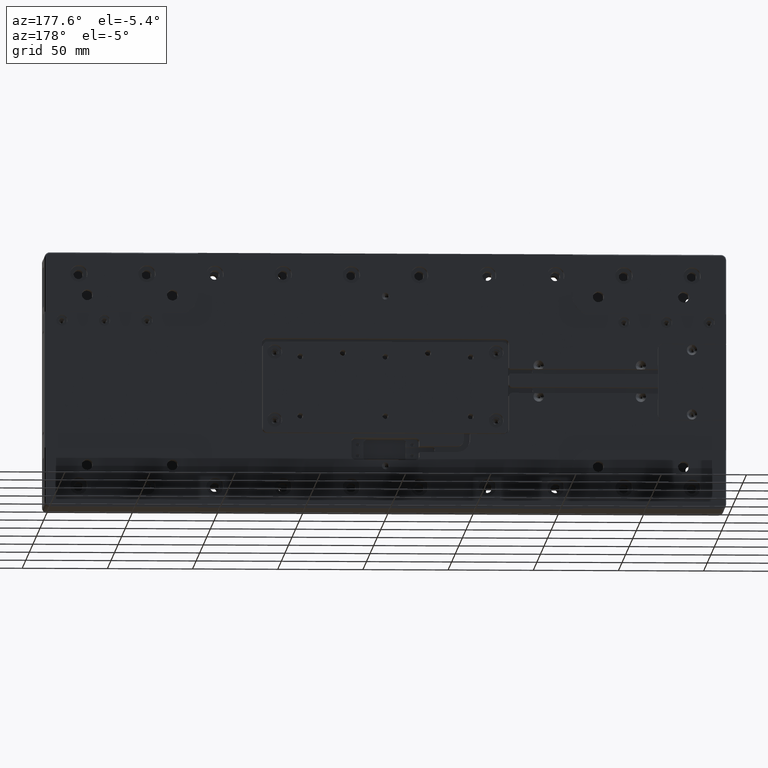
[diagram: clean part render]
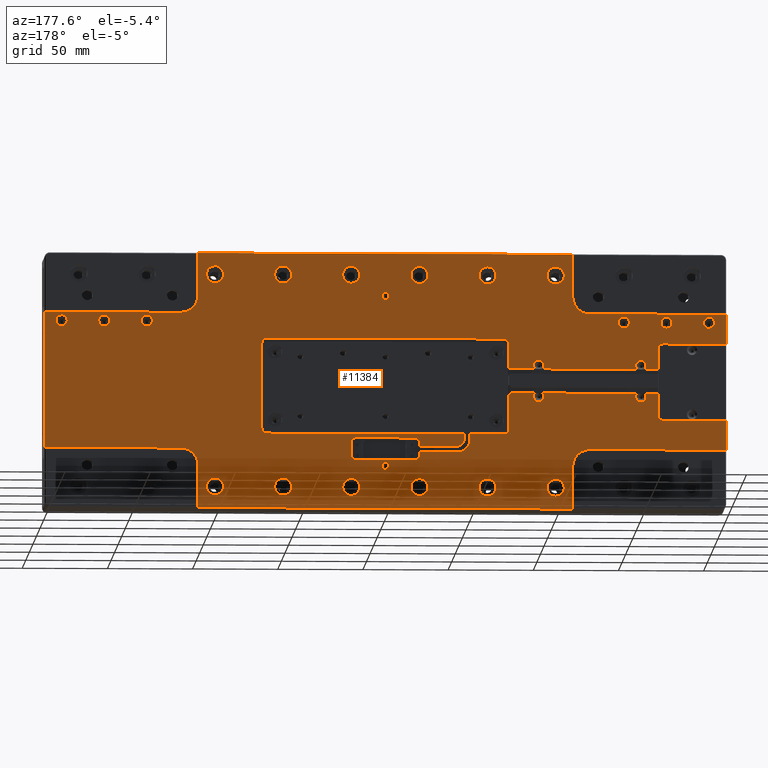
[diagram: same view with one face highlighted and labeled with its STEP entity id]
A machine part, auxiliary view. The second image highlights one B-rep face of the part: STEP entity #11384.
In plain terms, the highlighted planar face has unit normal (0, 1, 0).
Its self-contained STEP definition (entity closure, byte-faithful):
#63 = DIRECTION ( 'NONE',  ( -0.000000000000000000, -1.000000000000000000, -0.000000000000000000 ) ) ;
#78 = DIRECTION ( 'NONE',  ( 0.000000000000000000, 0.000000000000000000, 1.000000000000000000 ) ) ;
#101 = CIRCLE ( 'NONE', #16103, 1.000000000000000000 ) ;
#118 = EDGE_CURVE ( 'NONE', #11110, #12264, #101, .T. ) ;
#138 = EDGE_CURVE ( 'NONE', #18177, #18177, #31562, .T. ) ;
#153 = VERTEX_POINT ( 'NONE', #11376 ) ;
#220 = CARTESIAN_POINT ( 'NONE',  ( 110.0000000000000000, 14.50000000000000000, 0.000000000000000000 ) ) ;
#311 = LINE ( 'NONE', #516, #26731 ) ;
#405 = DIRECTION ( 'NONE',  ( 0.000000000000000000, 0.000000000000000000, 1.000000000000000000 ) ) ;
#449 = EDGE_CURVE ( 'NONE', #4313, #13432, #16037, .T. ) ;
#459 = CARTESIAN_POINT ( 'NONE',  ( -72.50000000000000000, 14.49999999999999822, 8.500000000000001776 ) ) ;
#484 = EDGE_CURVE ( 'NONE', #36821, #16899, #2051, .T. ) ;
#516 = CARTESIAN_POINT ( 'NONE',  ( -72.50000000000000000, 14.50000000000000000, 0.000000000000000000 ) ) ;
#744 = ORIENTED_EDGE ( 'NONE', *, *, #35721, .T. ) ;
#748 = EDGE_CURVE ( 'NONE', #15128, #15128, #7977, .T. ) ;
#800 = EDGE_LOOP ( 'NONE', ( #33799 ) ) ;
#964 = FACE_BOUND ( 'NONE', #23937, .T. ) ;
#965 = CARTESIAN_POINT ( 'NONE',  ( 20.00000000000000000, 14.50000000000000000, -36.00000000000000711 ) ) ;
#982 = EDGE_LOOP ( 'NONE', ( #24817 ) ) ;
#1067 = CIRCLE ( 'NONE', #17833, 3.100000000000000533 ) ;
#1135 = CARTESIAN_POINT ( 'NONE',  ( -100.0000000000000000, 14.50000000000000178, 62.50000000000000000 ) ) ;
#1147 = ORIENTED_EDGE ( 'NONE', *, *, #10512, .T. ) ;
#1190 = VERTEX_POINT ( 'NONE', #18488 ) ;
#1241 = DIRECTION ( 'NONE',  ( 0.000000000000000000, -0.000000000000000000, 1.000000000000000000 ) ) ;
#1246 = DIRECTION ( 'NONE',  ( 0.000000000000000000, 0.000000000000000000, 1.000000000000000000 ) ) ;
#1396 = VERTEX_POINT ( 'NONE', #18421 ) ;
#1447 = ORIENTED_EDGE ( 'NONE', *, *, #32521, .T. ) ;
#1561 = FACE_BOUND ( 'NONE', #11392, .T. ) ;
#1769 = ORIENTED_EDGE ( 'NONE', *, *, #36572, .T. ) ;
#1798 = CARTESIAN_POINT ( 'NONE',  ( -20.00000000000000000, 14.50000000000000000, 0.000000000000000000 ) ) ;
#1842 = DIRECTION ( 'NONE',  ( 0.000000000000000000, 0.000000000000000000, 1.000000000000000000 ) ) ;
#1900 = VECTOR ( 'NONE', #9362, 1000.000000000000000 ) ;
#1936 = CARTESIAN_POINT ( 'NONE',  ( -160.0000000000000000, 14.50000000000000000, -19.50000000000000000 ) ) ;
#2051 = CIRCLE ( 'NONE', #36872, 2.999999999999999112 ) ;
#2239 = DIRECTION ( 'NONE',  ( -0.000000000000000000, -1.000000000000000000, -0.000000000000000000 ) ) ;
#2254 = EDGE_CURVE ( 'NONE', #12324, #25168, #39716, .T. ) ;
#2301 = VECTOR ( 'NONE', #18542, 1000.000000000000000 ) ;
#2305 = LINE ( 'NONE', #18456, #10984 ) ;
#2364 = VERTEX_POINT ( 'NONE', #23107 ) ;
#2406 = EDGE_LOOP ( 'NONE', ( #5792 ) ) ;
#2426 = CIRCLE ( 'NONE', #21816, 4.999999999999997335 ) ;
#2449 = DIRECTION ( 'NONE',  ( -0.000000000000000000, -1.000000000000000000, -0.000000000000000000 ) ) ;
#2474 = LINE ( 'NONE', #8920, #20757 ) ;
#2502 = AXIS2_PLACEMENT_3D ( 'NONE', #21765, #34076, #31222 ) ;
#2559 = CARTESIAN_POINT ( 'NONE',  ( 0.000000000000000000, 14.50000000000000000, 7.500000000000000000 ) ) ;
#2567 = ORIENTED_EDGE ( 'NONE', *, *, #25531, .T. ) ;
#2752 = AXIS2_PLACEMENT_3D ( 'NONE', #34269, #4525, #6183 ) ;
#2772 = ORIENTED_EDGE ( 'NONE', *, *, #12543, .T. ) ;
#2807 = DIRECTION ( 'NONE',  ( -8.953411488912550710E-15, 0.000000000000000000, 1.000000000000000000 ) ) ;
#2835 = DIRECTION ( 'NONE',  ( -0.000000000000000000, -1.000000000000000000, -0.000000000000000000 ) ) ;
#2910 = ORIENTED_EDGE ( 'NONE', *, *, #32394, .T. ) ;
#2984 = CARTESIAN_POINT ( 'NONE',  ( -190.0000000000000000, 14.49999999999999822, 35.00000000000000000 ) ) ;
#3156 = EDGE_CURVE ( 'NONE', #23538, #15225, #38516, .T. ) ;
#3181 = CIRCLE ( 'NONE', #27013, 3.250000000000002665 ) ;
#3301 = CARTESIAN_POINT ( 'NONE',  ( -20.00000000000000000, 14.50000000000000178, 62.50000000000000000 ) ) ;
#3335 = DIRECTION ( 'NONE',  ( -0.000000000000000000, -1.000000000000000000, -0.000000000000000000 ) ) ;
#3427 = VERTEX_POINT ( 'NONE', #34426 ) ;
#3586 = CARTESIAN_POINT ( 'NONE',  ( -160.0000000000000000, 14.50000000000000000, 0.000000000000000000 ) ) ;
#3621 = AXIS2_PLACEMENT_3D ( 'NONE', #5864, #2835, #18189 ) ;
#3638 = VERTEX_POINT ( 'NONE', #27522 ) ;
#3648 = DIRECTION ( 'NONE',  ( 0.000000000000000000, 1.000000000000000000, 0.000000000000000000 ) ) ;
#3699 = CARTESIAN_POINT ( 'NONE',  ( -110.0000000000000000, 14.50000000000000000, 75.00000000000000000 ) ) ;
#3703 = AXIS2_PLACEMENT_3D ( 'NONE', #21301, #15426, #78 ) ;
#3722 = CIRCLE ( 'NONE', #21803, 5.000000000000004441 ) ;
#3733 = CIRCLE ( 'NONE', #25675, 7.750000000000000000 ) ;
#3734 = VERTEX_POINT ( 'NONE', #37223 ) ;
#3948 = EDGE_CURVE ( 'NONE', #7434, #7434, #13484, .T. ) ;
#3986 = DIRECTION ( 'NONE',  ( -0.000000000000000000, -1.000000000000000000, -0.000000000000000000 ) ) ;
#4001 = DIRECTION ( 'NONE',  ( -0.000000000000000000, -1.000000000000000000, -0.000000000000000000 ) ) ;
#4063 = VECTOR ( 'NONE', #33554, 1000.000000000000000 ) ;
#4132 = AXIS2_PLACEMENT_3D ( 'NONE', #33383, #24105, #27745 ) ;
#4205 = DIRECTION ( 'NONE',  ( 0.000000000000000000, 1.000000000000000000, 0.000000000000000000 ) ) ;
#4250 = DIRECTION ( 'NONE',  ( -0.000000000000000000, 0.000000000000000000, -1.000000000000000000 ) ) ;
#4276 = CIRCLE ( 'NONE', #28146, 4.250000000000000000 ) ;
#4313 = VERTEX_POINT ( 'NONE', #24847 ) ;
#4435 = VERTEX_POINT ( 'NONE', #35353 ) ;
#4525 = DIRECTION ( 'NONE',  ( -0.000000000000000000, -1.000000000000000000, -0.000000000000000000 ) ) ;
#4600 = FACE_BOUND ( 'NONE', #36173, .T. ) ;
#4641 = EDGE_CURVE ( 'NONE', #153, #14985, #30905, .T. ) ;
#4683 = CARTESIAN_POINT ( 'NONE',  ( -110.0000000000000000, 14.50000000000000000, 0.000000000000000000 ) ) ;
#4731 = ORIENTED_EDGE ( 'NONE', *, *, #17670, .T. ) ;
#4766 = LINE ( 'NONE', #26383, #21828 ) ;
#4883 = AXIS2_PLACEMENT_3D ( 'NONE', #6706, #63, #16006 ) ;
#4890 = EDGE_CURVE ( 'NONE', #4435, #27779, #7293, .T. ) ;
#4919 = EDGE_CURVE ( 'NONE', #35901, #1396, #29296, .T. ) ;
#5064 = CARTESIAN_POINT ( 'NONE',  ( 0.000000000000000000, 14.50000000000000000, -48.00000000000000000 ) ) ;
#5100 = EDGE_CURVE ( 'NONE', #22157, #12264, #22282, .T. ) ;
#5142 = CARTESIAN_POINT ( 'NONE',  ( 0.000000000000000000, 14.50000000000000000, -31.00000000000000000 ) ) ;
#5187 = DIRECTION ( 'NONE',  ( -0.000000000000000000, -1.000000000000000000, -0.000000000000000000 ) ) ;
#5239 = CARTESIAN_POINT ( 'NONE',  ( 17.50000000000000000, 14.50000000000000000, -33.50000000000000000 ) ) ;
#5294 = CARTESIAN_POINT ( 'NONE',  ( -92.36854385646769572, 14.50000000000000000, -6.750000000000000000 ) ) ;
#5447 = VERTEX_POINT ( 'NONE', #5064 ) ;
#5499 = CIRCLE ( 'NONE', #21009, 3.250000000000002665 ) ;
#5529 = DIRECTION ( 'NONE',  ( 0.000000000000000000, -0.000000000000000000, 1.000000000000000000 ) ) ;
#5533 = EDGE_LOOP ( 'NONE', ( #21398 ) ) ;
#5607 = DIRECTION ( 'NONE',  ( 0.000000000000000000, 0.000000000000000000, 1.000000000000000000 ) ) ;
#5720 = AXIS2_PLACEMENT_3D ( 'NONE', #1135, #3986, #34462 ) ;
#5736 = CARTESIAN_POINT ( 'NONE',  ( -140.0000000000000000, 14.49999999999999822, 35.00000000000000000 ) ) ;
#5792 = ORIENTED_EDGE ( 'NONE', *, *, #21735, .T. ) ;
#5820 = AXIS2_PLACEMENT_3D ( 'NONE', #3301, #27330, #27520 ) ;
#5837 = CARTESIAN_POINT ( 'NONE',  ( -150.0000000000000000, 14.50000000000000000, 9.500000000000000000 ) ) ;
#5864 = CARTESIAN_POINT ( 'NONE',  ( 17.50000000000000000, 14.50000000000000000, -36.00000000000000711 ) ) ;
#5870 = CARTESIAN_POINT ( 'NONE',  ( 100.0000000000000000, 14.50000000000000178, -62.50000000000000000 ) ) ;
#5877 = CARTESIAN_POINT ( 'NONE',  ( 17.50000000000000000, 14.50000000000000000, -44.00000000000000000 ) ) ;
#6144 = EDGE_CURVE ( 'NONE', #13432, #17726, #26349, .T. ) ;
#6175 = LINE ( 'NONE', #18507, #32713 ) ;
#6183 = DIRECTION ( 'NONE',  ( 0.000000000000000000, 0.000000000000000000, 1.000000000000000000 ) ) ;
#6195 = VECTOR ( 'NONE', #20782, 1000.000000000000000 ) ;
#6331 = EDGE_CURVE ( 'NONE', #17530, #17530, #36165, .T. ) ;
#6387 = CARTESIAN_POINT ( 'NONE',  ( 100.0000000000000000, 14.50000000000000178, -57.50000000000000000 ) ) ;
#6409 = VERTEX_POINT ( 'NONE', #38036 ) ;
#6587 = ORIENTED_EDGE ( 'NONE', *, *, #16684, .T. ) ;
#6602 = EDGE_CURVE ( 'NONE', #6409, #2364, #3733, .T. ) ;
#6655 = VECTOR ( 'NONE', #32798, 1000.000000000000000 ) ;
#6658 = EDGE_CURVE ( 'NONE', #9410, #9410, #2426, .T. ) ;
#6706 = CARTESIAN_POINT ( 'NONE',  ( -90.00000000000000000, 14.50000000000000000, -8.750000000000000000 ) ) ;
#6857 = VECTOR ( 'NONE', #17359, 1000.000000000000000 ) ;
#6866 = ORIENTED_EDGE ( 'NONE', *, *, #39362, .T. ) ;
#6926 = CARTESIAN_POINT ( 'NONE',  ( -160.0000000000000000, 14.50000000000000000, -6.750000000000000000 ) ) ;
#6964 = VECTOR ( 'NONE', #11604, 1000.000000000000000 ) ;
#7034 = ORIENTED_EDGE ( 'NONE', *, *, #22224, .T. ) ;
#7064 = VECTOR ( 'NONE', #20586, 1000.000000000000000 ) ;
#7176 = CARTESIAN_POINT ( 'NONE',  ( 0.000000000000000000, 14.50000000000000000, -22.50000000000000000 ) ) ;
#7234 = CIRCLE ( 'NONE', #26587, 2.999999999999999112 ) ;
#7290 = CARTESIAN_POINT ( 'NONE',  ( 0.000000000000000000, 14.50000000000000000, -6.750000000000000000 ) ) ;
#7293 = CIRCLE ( 'NONE', #36390, 2.999999999999999112 ) ;
#7379 = CARTESIAN_POINT ( 'NONE',  ( -152.3685438564826882, 14.50000000000000000, -6.750000000000000000 ) ) ;
#7415 = FACE_BOUND ( 'NONE', #5533, .T. ) ;
#7434 = VERTEX_POINT ( 'NONE', #13701 ) ;
#7669 = CARTESIAN_POINT ( 'NONE',  ( -73.50000000000001421, 14.49999999999999822, 7.500000000000000000 ) ) ;
#7811 = CARTESIAN_POINT ( 'NONE',  ( -200.0000000000000284, 14.50000000000000000, 22.50000000000000355 ) ) ;
#7879 = EDGE_CURVE ( 'NONE', #3734, #9925, #24466, .T. ) ;
#7962 = EDGE_CURVE ( 'NONE', #35322, #11062, #25332, .T. ) ;
#7977 = CIRCLE ( 'NONE', #30520, 5.000000000000004441 ) ;
#8110 = VECTOR ( 'NONE', #18794, 1000.000000000000000 ) ;
#8157 = LINE ( 'NONE', #20491, #6655 ) ;
#8221 = DIRECTION ( 'NONE',  ( -1.000000000000000000, -0.000000000000000000, 0.000000000000000000 ) ) ;
#8231 = VERTEX_POINT ( 'NONE', #17721 ) ;
#8287 = CARTESIAN_POINT ( 'NONE',  ( 0.000000000000000000, 14.50000000000000000, 52.00000000000000711 ) ) ;
#8317 = ORIENTED_EDGE ( 'NONE', *, *, #19644, .T. ) ;
#8448 = VERTEX_POINT ( 'NONE', #16139 ) ;
#8480 = VERTEX_POINT ( 'NONE', #17583 ) ;
#8549 = DIRECTION ( 'NONE',  ( -0.000000000000000000, -1.000000000000000000, -0.000000000000000000 ) ) ;
#8568 = CIRCLE ( 'NONE', #2752, 3.100000000000000533 ) ;
#8706 = DIRECTION ( 'NONE',  ( 0.000000000000000000, 0.000000000000000000, 1.000000000000000000 ) ) ;
#8715 = ORIENTED_EDGE ( 'NONE', *, *, #37662, .T. ) ;
#8770 = CIRCLE ( 'NONE', #26848, 3.250000000000002665 ) ;
#8777 = ORIENTED_EDGE ( 'NONE', *, *, #14829, .T. ) ;
#8810 = VERTEX_POINT ( 'NONE', #12403 ) ;
#8920 = CARTESIAN_POINT ( 'NONE',  ( -200.0000000000000000, 14.50000000000000000, 0.000000000000000000 ) ) ;
#8952 = CARTESIAN_POINT ( 'NONE',  ( 69.50000000000000000, 14.50000000000000000, -28.00000000000000000 ) ) ;
#8983 = AXIS2_PLACEMENT_3D ( 'NONE', #32998, #8549, #14230 ) ;
#8984 = ORIENTED_EDGE ( 'NONE', *, *, #16043, .T. ) ;
#9051 = EDGE_CURVE ( 'NONE', #2364, #18588, #35616, .T. ) ;
#9100 = VECTOR ( 'NONE', #27397, 1000.000000000000000 ) ;
#9111 = DIRECTION ( 'NONE',  ( -0.000000000000000000, -1.000000000000000000, -0.000000000000000000 ) ) ;
#9129 = DIRECTION ( 'NONE',  ( 0.000000000000000000, 0.000000000000000000, 1.000000000000000000 ) ) ;
#9131 = CARTESIAN_POINT ( 'NONE',  ( -72.50000000000001421, 14.50000000000000000, -28.00000000000000000 ) ) ;
#9152 = LINE ( 'NONE', #5142, #9567 ) ;
#9362 = DIRECTION ( 'NONE',  ( 1.000000000000000000, 0.000000000000000000, -0.000000000000000000 ) ) ;
#9382 = CARTESIAN_POINT ( 'NONE',  ( -90.00000000000000000, 14.50000000000000000, 9.500000000000000000 ) ) ;
#9410 = VERTEX_POINT ( 'NONE', #6387 ) ;
#9415 = VECTOR ( 'NONE', #35569, 1000.000000000000000 ) ;
#9553 = VERTEX_POINT ( 'NONE', #27082 ) ;
#9567 = VECTOR ( 'NONE', #21074, 1000.000000000000000 ) ;
#9837 = CARTESIAN_POINT ( 'NONE',  ( 0.000000000000000000, 14.50000000000000000, 75.00000000000000000 ) ) ;
#9846 = LINE ( 'NONE', #30850, #2301 ) ;
#9925 = VERTEX_POINT ( 'NONE', #10083 ) ;
#9944 = CARTESIAN_POINT ( 'NONE',  ( -72.50000000000000000, 14.50000000000000000, 0.000000000000000000 ) ) ;
#10041 = CARTESIAN_POINT ( 'NONE',  ( 0.000000000000000000, 14.50000000000000000, 0.000000000000000000 ) ) ;
#10044 = VERTEX_POINT ( 'NONE', #17151 ) ;
#10077 = EDGE_CURVE ( 'NONE', #1396, #25365, #17554, .T. ) ;
#10083 = CARTESIAN_POINT ( 'NONE',  ( 109.9999999999999858, 14.50000000000000000, -75.00000000000000000 ) ) ;
#10090 = AXIS2_PLACEMENT_3D ( 'NONE', #10041, #22376, #37929 ) ;
#10117 = CARTESIAN_POINT ( 'NONE',  ( 60.00000000000000000, 14.50000000000000178, -57.50000000000000000 ) ) ;
#10122 = CARTESIAN_POINT ( 'NONE',  ( 0.000000000000000000, 14.50000000000000000, -50.00000000000000000 ) ) ;
#10197 = CARTESIAN_POINT ( 'NONE',  ( -17.50000000000000000, 14.50000000000000000, -46.50000000000000000 ) ) ;
#10225 = VECTOR ( 'NONE', #17705, 1000.000000000000000 ) ;
#10236 = DIRECTION ( 'NONE',  ( 0.000000000000000000, 0.000000000000000000, 1.000000000000000000 ) ) ;
#10258 = EDGE_CURVE ( 'NONE', #16899, #30174, #21384, .T. ) ;
#10287 = CIRCLE ( 'NONE', #8983, 5.000000000000004441 ) ;
#10302 = CARTESIAN_POINT ( 'NONE',  ( -49.75000000000000000, 14.50000000000000000, 0.000000000000000000 ) ) ;
#10309 = ORIENTED_EDGE ( 'NONE', *, *, #38318, .T. ) ;
#10314 = EDGE_CURVE ( 'NONE', #10607, #10607, #16779, .T. ) ;
#10512 = EDGE_CURVE ( 'NONE', #23141, #23141, #5499, .T. ) ;
#10564 = ORIENTED_EDGE ( 'NONE', *, *, #7962, .T. ) ;
#10607 = VERTEX_POINT ( 'NONE', #39094 ) ;
#10616 = ORIENTED_EDGE ( 'NONE', *, *, #26155, .T. ) ;
#10636 = CARTESIAN_POINT ( 'NONE',  ( -87.63145614353229007, 14.50000000000000000, -6.750000000000000000 ) ) ;
#10716 = ORIENTED_EDGE ( 'NONE', *, *, #22228, .T. ) ;
#10797 = VECTOR ( 'NONE', #8221, 1000.000000000000000 ) ;
#10839 = DIRECTION ( 'NONE',  ( 0.000000000000000000, 0.000000000000000000, 1.000000000000000000 ) ) ;
#10841 = ORIENTED_EDGE ( 'NONE', *, *, #33267, .T. ) ;
#10850 = FACE_BOUND ( 'NONE', #34792, .T. ) ;
#10966 = DIRECTION ( 'NONE',  ( 1.000000000000000000, 0.000000000000000000, -0.000000000000000000 ) ) ;
#10967 = CARTESIAN_POINT ( 'NONE',  ( 109.9999999999999858, 14.50000000004499867, 75.00000000000000000 ) ) ;
#10984 = VECTOR ( 'NONE', #5529, 1000.000000000000000 ) ;
#10991 = CARTESIAN_POINT ( 'NONE',  ( 165.0000000000000000, 14.49999999999999822, 35.00000000000000000 ) ) ;
#11022 = ORIENTED_EDGE ( 'NONE', *, *, #35649, .T. ) ;
#11062 = VERTEX_POINT ( 'NONE', #26246 ) ;
#11084 = CARTESIAN_POINT ( 'NONE',  ( 69.50000000000000000, 14.50000000000000000, 25.00000000000000000 ) ) ;
#11110 = VERTEX_POINT ( 'NONE', #7669 ) ;
#11262 = EDGE_CURVE ( 'NONE', #27779, #31280, #9846, .T. ) ;
#11376 = CARTESIAN_POINT ( 'NONE',  ( -120.0000000000000000, 14.49999999999999822, 40.00000000000000000 ) ) ;
#11384 = ADVANCED_FACE ( 'NONE', ( #31440, #964, #25598, #4600, #7415, #28442, #13680, #32262, #19356, #22786, #16921, #19959, #22589, #13278, #38528, #10850, #29227, #1561, #16328, #37728, #22972 ), #35102, .T. ) ;
#11392 = EDGE_LOOP ( 'NONE', ( #13598 ) ) ;
#11491 = CARTESIAN_POINT ( 'NONE',  ( -87.63145614353364010, 14.50000000000000000, 7.500000000001130651 ) ) ;
#11526 = CARTESIAN_POINT ( 'NONE',  ( 190.0000000000000000, 14.49999999999999822, 35.00000000000000000 ) ) ;
#11550 = LINE ( 'NONE', #23290, #14360 ) ;
#11604 = DIRECTION ( 'NONE',  ( -1.000000000000000000, -0.000000000000000000, 0.000000000000000000 ) ) ;
#11711 = EDGE_CURVE ( 'NONE', #14247, #14247, #20425, .T. ) ;
#12010 = VECTOR ( 'NONE', #21385, 1000.000000000000000 ) ;
#12053 = ORIENTED_EDGE ( 'NONE', *, *, #32040, .T. ) ;
#12192 = CARTESIAN_POINT ( 'NONE',  ( -163.0000000000000000, 14.50000000000000000, -22.50000000000000000 ) ) ;
#12264 = VERTEX_POINT ( 'NONE', #459 ) ;
#12324 = VERTEX_POINT ( 'NONE', #11491 ) ;
#12403 = CARTESIAN_POINT ( 'NONE',  ( -163.0000000000000000, 14.50000000000000000, 22.50000000000000000 ) ) ;
#12417 = AXIS2_PLACEMENT_3D ( 'NONE', #5877, #9111, #15582 ) ;
#12436 = VECTOR ( 'NONE', #35286, 1000.000000000000000 ) ;
#12543 = EDGE_CURVE ( 'NONE', #15225, #18831, #39208, .T. ) ;
#12594 = VECTOR ( 'NONE', #35883, 1000.000000000000000 ) ;
#12635 = DIRECTION ( 'NONE',  ( -0.000000000000000000, 0.000000000000000000, -1.000000000000000000 ) ) ;
#12769 = EDGE_LOOP ( 'NONE', ( #12911, #18083, #11022, #39997, #10841, #1447, #12053, #26632, #8777, #24084, #24536, #4731, #7034, #28340, #17937, #39214, #2910, #14480, #31210, #32073, #8317, #23392, #32925, #25196, #10309, #1769, #36818, #28665, #8715, #6866, #19121, #26502, #20769, #2772, #744, #37205, #2567, #21879, #30616, #37557, #28716, #29570, #22303, #10564, #27209, #15451, #14628, #27880, #15734, #27537, #10616, #27831, #36863, #15028, #13651, #37696, #25655, #39840, #37762, #15384 ) ) ;
#12911 = ORIENTED_EDGE ( 'NONE', *, *, #21667, .T. ) ;
#13125 = LINE ( 'NONE', #22030, #8110 ) ;
#13156 = DIRECTION ( 'NONE',  ( 0.000000000000000000, 0.000000000000000000, 1.000000000000000000 ) ) ;
#13221 = LINE ( 'NONE', #31388, #13489 ) ;
#13268 = CARTESIAN_POINT ( 'NONE',  ( -60.00000000000000000, 14.50000000000000178, -62.50000000000000000 ) ) ;
#13278 = FACE_BOUND ( 'NONE', #23270, .T. ) ;
#13319 = VERTEX_POINT ( 'NONE', #30912 ) ;
#13432 = VERTEX_POINT ( 'NONE', #15777 ) ;
#13484 = CIRCLE ( 'NONE', #28966, 3.250000000000002665 ) ;
#13489 = VECTOR ( 'NONE', #16275, 1000.000000000000000 ) ;
#13598 = ORIENTED_EDGE ( 'NONE', *, *, #24169, .T. ) ;
#13651 = ORIENTED_EDGE ( 'NONE', *, *, #11262, .T. ) ;
#13652 = DIRECTION ( 'NONE',  ( 1.000000000000000000, 0.000000000000000000, -0.000000000000000000 ) ) ;
#13680 = FACE_BOUND ( 'NONE', #38695, .T. ) ;
#13701 = CARTESIAN_POINT ( 'NONE',  ( -165.0000000000000000, 14.49999999999999822, 38.25000000000000711 ) ) ;
#13957 = VECTOR ( 'NONE', #4250, 1000.000000000000000 ) ;
#13970 = DIRECTION ( 'NONE',  ( -0.000000000000000000, -1.000000000000000000, -0.000000000000000000 ) ) ;
#14052 = AXIS2_PLACEMENT_3D ( 'NONE', #31656, #38336, #35300 ) ;
#14076 = EDGE_CURVE ( 'NONE', #13319, #8448, #20156, .T. ) ;
#14086 = CARTESIAN_POINT ( 'NONE',  ( -46.25000000000000000, 14.50000000000000000, 0.000000000000000000 ) ) ;
#14097 = CIRCLE ( 'NONE', #36658, 2.000000000000001776 ) ;
#14165 = EDGE_LOOP ( 'NONE', ( #22944 ) ) ;
#14230 = DIRECTION ( 'NONE',  ( 0.000000000000000000, 0.000000000000000000, 1.000000000000000000 ) ) ;
#14247 = VERTEX_POINT ( 'NONE', #26571 ) ;
#14281 = EDGE_CURVE ( 'NONE', #23268, #35901, #6175, .T. ) ;
#14305 = CIRCLE ( 'NONE', #25264, 2.999999999999999112 ) ;
#14360 = VECTOR ( 'NONE', #26522, 1000.000000000000000 ) ;
#14412 = CARTESIAN_POINT ( 'NONE',  ( -73.50000000000000000, 14.49999999999999822, 8.500000000000000000 ) ) ;
#14458 = CARTESIAN_POINT ( 'NONE',  ( 140.0000000000000000, 14.49999999999999822, 35.00000000000000000 ) ) ;
#14468 = DIRECTION ( 'NONE',  ( -0.000000000000000000, -1.000000000000000000, -0.000000000000000000 ) ) ;
#14480 = ORIENTED_EDGE ( 'NONE', *, *, #14076, .T. ) ;
#14513 = DIRECTION ( 'NONE',  ( -0.000000000000000000, -1.000000000000000000, -0.000000000000000000 ) ) ;
#14550 = VERTEX_POINT ( 'NONE', #7379 ) ;
#14622 = LINE ( 'NONE', #19010, #6964 ) ;
#14628 = ORIENTED_EDGE ( 'NONE', *, *, #14281, .T. ) ;
#14726 = EDGE_CURVE ( 'NONE', #36943, #30515, #14622, .T. ) ;
#14829 = EDGE_CURVE ( 'NONE', #18637, #22196, #19422, .T. ) ;
#14985 = VERTEX_POINT ( 'NONE', #26268 ) ;
#15028 = ORIENTED_EDGE ( 'NONE', *, *, #4890, .T. ) ;
#15071 = DIRECTION ( 'NONE',  ( -1.000000000000000000, -0.000000000000000000, 0.000000000000000000 ) ) ;
#15075 = LINE ( 'NONE', #18715, #9100 ) ;
#15107 = CARTESIAN_POINT ( 'NONE',  ( 0.000000000000000000, 14.50000000000000000, -46.50000000000000000 ) ) ;
#15128 = VERTEX_POINT ( 'NONE', #37353 ) ;
#15174 = DIRECTION ( 'NONE',  ( 0.000000000000000000, -0.000000000000000000, 1.000000000000000000 ) ) ;
#15225 = VERTEX_POINT ( 'NONE', #16542 ) ;
#15227 = LINE ( 'NONE', #36649, #38215 ) ;
#15303 = DIRECTION ( 'NONE',  ( -0.000000000000000000, -1.000000000000000000, -0.000000000000000000 ) ) ;
#15384 = ORIENTED_EDGE ( 'NONE', *, *, #118, .F. ) ;
#15385 = DIRECTION ( 'NONE',  ( 0.000000000000000000, 0.000000000000000000, 1.000000000000000000 ) ) ;
#15426 = DIRECTION ( 'NONE',  ( -0.000000000000000000, -1.000000000000000000, -0.000000000000000000 ) ) ;
#15451 = ORIENTED_EDGE ( 'NONE', *, *, #21787, .T. ) ;
#15499 = EDGE_LOOP ( 'NONE', ( #26692 ) ) ;
#15582 = DIRECTION ( 'NONE',  ( 0.000000000000000000, 0.000000000000000000, 1.000000000000000000 ) ) ;
#15657 = DIRECTION ( 'NONE',  ( 0.000000000000000000, 0.000000000000000000, 1.000000000000000000 ) ) ;
#15688 = CARTESIAN_POINT ( 'NONE',  ( -69.50000000000000000, 14.50000000000000000, -31.00000000000000000 ) ) ;
#15734 = ORIENTED_EDGE ( 'NONE', *, *, #10077, .T. ) ;
#15777 = CARTESIAN_POINT ( 'NONE',  ( 120.0000000000000000, 14.49999999999999822, 40.00000000000000000 ) ) ;
#15792 = EDGE_CURVE ( 'NONE', #22196, #153, #4766, .T. ) ;
#15836 = CARTESIAN_POINT ( 'NONE',  ( 60.00000000000000000, 14.50000000000000178, -62.50000000000000000 ) ) ;
#15998 = CIRCLE ( 'NONE', #35356, 4.999999999999997335 ) ;
#16006 = DIRECTION ( 'NONE',  ( 0.000000000000000000, 0.000000000000000000, 1.000000000000000000 ) ) ;
#16037 = CIRCLE ( 'NONE', #35389, 10.00000000000000178 ) ;
#16043 = EDGE_CURVE ( 'NONE', #31916, #31916, #15998, .T. ) ;
#16086 = DIRECTION ( 'NONE',  ( 1.000000000000000000, 0.000000000000000000, -0.000000000000000000 ) ) ;
#16103 = AXIS2_PLACEMENT_3D ( 'NONE', #14412, #26934, #17457 ) ;
#16139 = CARTESIAN_POINT ( 'NONE',  ( 120.0000000000000000, 14.49999999999999822, -40.00000000000000000 ) ) ;
#16220 = CARTESIAN_POINT ( 'NONE',  ( 120.0000000000000000, 14.49999999999999822, 50.00000000000000000 ) ) ;
#16275 = DIRECTION ( 'NONE',  ( -1.000000000000000000, -0.000000000000000000, 0.000000000000000000 ) ) ;
#16328 = FACE_BOUND ( 'NONE', #27674, .T. ) ;
#16334 = DIRECTION ( 'NONE',  ( 0.000000000000000000, 0.000000000000000000, 1.000000000000000000 ) ) ;
#16434 = EDGE_CURVE ( 'NONE', #5447, #5447, #14097, .T. ) ;
#16455 = AXIS2_PLACEMENT_3D ( 'NONE', #20937, #14468, #26794 ) ;
#16481 = CIRCLE ( 'NONE', #4883, 3.100000000000000533 ) ;
#16510 = DIRECTION ( 'NONE',  ( -0.000000000000000000, -1.000000000000000000, -0.000000000000000000 ) ) ;
#16542 = CARTESIAN_POINT ( 'NONE',  ( -74.50000000000000000, 14.49999999999999822, -6.750000000000000888 ) ) ;
#16572 = LINE ( 'NONE', #10302, #13957 ) ;
#16684 = EDGE_CURVE ( 'NONE', #27066, #27066, #33455, .T. ) ;
#16747 = EDGE_CURVE ( 'NONE', #26491, #26491, #26391, .T. ) ;
#16779 = CIRCLE ( 'NONE', #20633, 4.999999999999997335 ) ;
#16813 = EDGE_CURVE ( 'NONE', #8480, #8480, #36068, .T. ) ;
#16899 = VERTEX_POINT ( 'NONE', #1936 ) ;
#16921 = FACE_BOUND ( 'NONE', #800, .T. ) ;
#17009 = VERTEX_POINT ( 'NONE', #11084 ) ;
#17010 = DIRECTION ( 'NONE',  ( 0.000000000000000000, -0.000000000000000000, 1.000000000000000000 ) ) ;
#17018 = DIRECTION ( 'NONE',  ( 0.000000000000000000, 0.000000000000000000, 1.000000000000000000 ) ) ;
#17087 = CARTESIAN_POINT ( 'NONE',  ( -140.0000000000000000, 14.49999999999999822, 38.25000000000000711 ) ) ;
#17150 = CARTESIAN_POINT ( 'NONE',  ( 100.0000000000000000, 14.50000000000000178, 62.50000000000000000 ) ) ;
#17151 = CARTESIAN_POINT ( 'NONE',  ( -160.0000000000000000, 14.50000000000000000, 7.500000000000000000 ) ) ;
#17179 = VERTEX_POINT ( 'NONE', #35764 ) ;
#17338 = DIRECTION ( 'NONE',  ( -0.000000000000000000, -1.000000000000000000, -0.000000000000000000 ) ) ;
#17359 = DIRECTION ( 'NONE',  ( 0.000000000000000000, -0.000000000000000000, 1.000000000000000000 ) ) ;
#17390 = DIRECTION ( 'NONE',  ( -0.000000000000000000, -1.000000000000000000, -0.000000000000000000 ) ) ;
#17457 = DIRECTION ( 'NONE',  ( 0.000000000000000000, 0.000000000000000000, -1.000000000000000000 ) ) ;
#17530 = VERTEX_POINT ( 'NONE', #29828 ) ;
#17554 = LINE ( 'NONE', #1798, #7064 ) ;
#17575 = EDGE_LOOP ( 'NONE', ( #30189 ) ) ;
#17583 = CARTESIAN_POINT ( 'NONE',  ( -100.0000000000000000, 14.50000000000000178, 67.50000000000000000 ) ) ;
#17670 = EDGE_CURVE ( 'NONE', #14985, #33467, #32350, .T. ) ;
#17705 = DIRECTION ( 'NONE',  ( -0.000000000000000000, 0.000000000000000000, -1.000000000000000000 ) ) ;
#17721 = CARTESIAN_POINT ( 'NONE',  ( -190.0000000000000000, 14.49999999999999822, 38.25000000000000711 ) ) ;
#17725 = EDGE_CURVE ( 'NONE', #22340, #23934, #37421, .T. ) ;
#17726 = VERTEX_POINT ( 'NONE', #29896 ) ;
#17763 = ORIENTED_EDGE ( 'NONE', *, *, #10314, .T. ) ;
#17833 = AXIS2_PLACEMENT_3D ( 'NONE', #5837, #18164, #2807 ) ;
#17937 = ORIENTED_EDGE ( 'NONE', *, *, #449, .T. ) ;
#18016 = CARTESIAN_POINT ( 'NONE',  ( -110.0000000000000000, 14.49999999999999822, -50.00000000000000000 ) ) ;
#18083 = ORIENTED_EDGE ( 'NONE', *, *, #2254, .T. ) ;
#18111 = LINE ( 'NONE', #2559, #33807 ) ;
#18164 = DIRECTION ( 'NONE',  ( -0.000000000000000000, -1.000000000000000000, -0.000000000000000000 ) ) ;
#18177 = VERTEX_POINT ( 'NONE', #33308 ) ;
#18189 = DIRECTION ( 'NONE',  ( 0.000000000000000000, 0.000000000000000000, 1.000000000000000000 ) ) ;
#18192 = EDGE_CURVE ( 'NONE', #17179, #17179, #3722, .T. ) ;
#18300 = CARTESIAN_POINT ( 'NONE',  ( -152.3685438564826882, 14.50000000000000000, 7.500000000000000000 ) ) ;
#18421 = CARTESIAN_POINT ( 'NONE',  ( -20.00000000000000000, 14.50000000000000000, -36.00000000000000711 ) ) ;
#18456 = CARTESIAN_POINT ( 'NONE',  ( -110.0000000000000000, 14.50000000000000000, 0.000000000000000000 ) ) ;
#18488 = CARTESIAN_POINT ( 'NONE',  ( -49.74999999999999289, 14.50000000000000000, -31.00000000000000000 ) ) ;
#18507 = CARTESIAN_POINT ( 'NONE',  ( 0.000000000000000000, 14.50000000000000000, -33.50000000000000000 ) ) ;
#18542 = DIRECTION ( 'NONE',  ( 0.000000000000000000, -0.000000000000000000, 1.000000000000000000 ) ) ;
#18588 = VERTEX_POINT ( 'NONE', #26406 ) ;
#18637 = VERTEX_POINT ( 'NONE', #7811 ) ;
#18715 = CARTESIAN_POINT ( 'NONE',  ( 0.000000000000000000, 14.50000000000000000, -6.750000000000000000 ) ) ;
#18794 = DIRECTION ( 'NONE',  ( -1.000000000000000000, -0.000000000000000000, 0.000000000000000000 ) ) ;
#18831 = VERTEX_POINT ( 'NONE', #24143 ) ;
#19010 = CARTESIAN_POINT ( 'NONE',  ( 0.000000000000000000, 14.50000000000000000, -40.00000000000000000 ) ) ;
#19046 = ORIENTED_EDGE ( 'NONE', *, *, #38981, .T. ) ;
#19063 = AXIS2_PLACEMENT_3D ( 'NONE', #9382, #3335, #15657 ) ;
#19121 = ORIENTED_EDGE ( 'NONE', *, *, #39759, .T. ) ;
#19242 = DIRECTION ( 'NONE',  ( -0.000000000000000000, -1.000000000000000000, -0.000000000000000000 ) ) ;
#19266 = LINE ( 'NONE', #31165, #1900 ) ;
#19328 = AXIS2_PLACEMENT_3D ( 'NONE', #10991, #24098, #32393 ) ;
#19356 = FACE_BOUND ( 'NONE', #15499, .T. ) ;
#19422 = LINE ( 'NONE', #32125, #23121 ) ;
#19571 = ORIENTED_EDGE ( 'NONE', *, *, #16747, .T. ) ;
#19615 = EDGE_LOOP ( 'NONE', ( #19046 ) ) ;
#19644 = EDGE_CURVE ( 'NONE', #9925, #37913, #25217, .T. ) ;
#19951 = DIRECTION ( 'NONE',  ( 0.000000000000000000, 0.000000000000000000, 1.000000000000000000 ) ) ;
#19955 = CARTESIAN_POINT ( 'NONE',  ( 60.00000000000000000, 14.50000000000000178, 62.50000000000000000 ) ) ;
#19959 = FACE_BOUND ( 'NONE', #36463, .T. ) ;
#20148 = AXIS2_PLACEMENT_3D ( 'NONE', #35125, #17338, #31875 ) ;
#20156 = LINE ( 'NONE', #32869, #10797 ) ;
#20190 = EDGE_CURVE ( 'NONE', #17009, #32183, #13221, .T. ) ;
#20293 = EDGE_CURVE ( 'NONE', #25031, #25031, #10287, .T. ) ;
#20315 = VERTEX_POINT ( 'NONE', #17087 ) ;
#20425 = CIRCLE ( 'NONE', #23650, 4.999999999999997335 ) ;
#20491 = CARTESIAN_POINT ( 'NONE',  ( 0.000000000000000000, 14.50000000000000000, 7.500000000000000000 ) ) ;
#20586 = DIRECTION ( 'NONE',  ( -0.000000000000000000, 0.000000000000000000, -1.000000000000000000 ) ) ;
#20633 = AXIS2_PLACEMENT_3D ( 'NONE', #13268, #16510, #10236 ) ;
#20757 = VECTOR ( 'NONE', #15174, 1000.000000000000000 ) ;
#20769 = ORIENTED_EDGE ( 'NONE', *, *, #3156, .T. ) ;
#20782 = DIRECTION ( 'NONE',  ( 1.000000000000000000, 0.000000000000000000, -0.000000000000000000 ) ) ;
#20854 = CARTESIAN_POINT ( 'NONE',  ( -17.50000000000000000, 14.50000000000000000, -33.50000000000000000 ) ) ;
#20865 = CARTESIAN_POINT ( 'NONE',  ( -100.0000000000000000, 14.50000000000000178, -57.50000000000000000 ) ) ;
#20907 = VECTOR ( 'NONE', #37229, 1000.000000000000000 ) ;
#20937 = CARTESIAN_POINT ( 'NONE',  ( -120.0000000000000000, 14.49999999999999822, -50.00000000000000000 ) ) ;
#21009 = AXIS2_PLACEMENT_3D ( 'NONE', #14458, #5187, #10839 ) ;
#21026 = CARTESIAN_POINT ( 'NONE',  ( 0.000000000000000000, 14.50000000000000000, 7.500000000000000000 ) ) ;
#21074 = DIRECTION ( 'NONE',  ( 1.000000000000000000, 0.000000000000000000, -0.000000000000000000 ) ) ;
#21220 = EDGE_LOOP ( 'NONE', ( #10716 ) ) ;
#21301 = CARTESIAN_POINT ( 'NONE',  ( -20.00000000000000000, 14.50000000000000178, -62.50000000000000000 ) ) ;
#21384 = LINE ( 'NONE', #3586, #32878 ) ;
#21385 = DIRECTION ( 'NONE',  ( 1.000000000000000000, 0.000000000000000000, -0.000000000000000000 ) ) ;
#21398 = ORIENTED_EDGE ( 'NONE', *, *, #138, .T. ) ;
#21458 = EDGE_CURVE ( 'NONE', #27264, #23538, #16481, .T. ) ;
#21600 = CARTESIAN_POINT ( 'NONE',  ( -200.0000000000000000, 14.50000000000000000, -40.00000000000000000 ) ) ;
#21664 = CIRCLE ( 'NONE', #3621, 2.500000000000002220 ) ;
#21667 = EDGE_CURVE ( 'NONE', #11110, #12324, #24237, .T. ) ;
#21735 = EDGE_CURVE ( 'NONE', #29253, #29253, #28118, .T. ) ;
#21752 = CIRCLE ( 'NONE', #3703, 4.999999999999997335 ) ;
#21765 = CARTESIAN_POINT ( 'NONE',  ( 0.000000000000000000, 14.50000000000000000, 50.00000000000000000 ) ) ;
#21787 = EDGE_CURVE ( 'NONE', #23570, #23268, #21664, .T. ) ;
#21803 = AXIS2_PLACEMENT_3D ( 'NONE', #17150, #38576, #5607 ) ;
#21816 = AXIS2_PLACEMENT_3D ( 'NONE', #5870, #2449, #27475 ) ;
#21828 = VECTOR ( 'NONE', #13652, 1000.000000000000000 ) ;
#21856 = EDGE_CURVE ( 'NONE', #8810, #18637, #13125, .T. ) ;
#21879 = ORIENTED_EDGE ( 'NONE', *, *, #26370, .T. ) ;
#21912 = DIRECTION ( 'NONE',  ( -0.000000000000000000, -1.000000000000000000, -0.000000000000000000 ) ) ;
#22030 = CARTESIAN_POINT ( 'NONE',  ( 0.000000000000000000, 14.50000000000000000, 22.50000000000000000 ) ) ;
#22105 = EDGE_CURVE ( 'NONE', #11062, #23570, #35923, .T. ) ;
#22128 = EDGE_CURVE ( 'NONE', #23934, #35322, #23810, .T. ) ;
#22157 = VERTEX_POINT ( 'NONE', #24195 ) ;
#22196 = VERTEX_POINT ( 'NONE', #24398 ) ;
#22224 = EDGE_CURVE ( 'NONE', #33467, #35815, #27428, .T. ) ;
#22228 = EDGE_CURVE ( 'NONE', #8231, #8231, #8770, .T. ) ;
#22272 = DIRECTION ( 'NONE',  ( 0.000000000000000000, 0.000000000000000000, 1.000000000000000000 ) ) ;
#22282 = LINE ( 'NONE', #9944, #20907 ) ;
#22303 = ORIENTED_EDGE ( 'NONE', *, *, #22128, .T. ) ;
#22340 = VERTEX_POINT ( 'NONE', #28629 ) ;
#22376 = DIRECTION ( 'NONE',  ( 0.000000000000000000, 1.000000000000000000, 0.000000000000000000 ) ) ;
#22455 = AXIS2_PLACEMENT_3D ( 'NONE', #38534, #4205, #16334 ) ;
#22509 = DIRECTION ( 'NONE',  ( 0.000000000000000000, 0.000000000000000000, 1.000000000000000000 ) ) ;
#22589 = FACE_BOUND ( 'NONE', #27127, .T. ) ;
#22786 = FACE_BOUND ( 'NONE', #26438, .T. ) ;
#22902 = ORIENTED_EDGE ( 'NONE', *, *, #20293, .T. ) ;
#22944 = ORIENTED_EDGE ( 'NONE', *, *, #16434, .T. ) ;
#22961 = CARTESIAN_POINT ( 'NONE',  ( 0.000000000000000000, 14.50000000000000000, -6.750000000000000000 ) ) ;
#22972 = FACE_OUTER_BOUND ( 'NONE', #12769, .T. ) ;
#23107 = CARTESIAN_POINT ( 'NONE',  ( -42.00000000000000000, 14.50000000000000000, -41.75000000000000000 ) ) ;
#23121 = VECTOR ( 'NONE', #1241, 1000.000000000000000 ) ;
#23141 = VERTEX_POINT ( 'NONE', #25976 ) ;
#23268 = VERTEX_POINT ( 'NONE', #5239 ) ;
#23270 = EDGE_LOOP ( 'NONE', ( #23628 ) ) ;
#23290 = CARTESIAN_POINT ( 'NONE',  ( -160.0000000000000000, 14.50000000000000000, 0.000000000000000000 ) ) ;
#23377 = DIRECTION ( 'NONE',  ( -0.000000000000000000, -1.000000000000000000, -0.000000000000000000 ) ) ;
#23392 = ORIENTED_EDGE ( 'NONE', *, *, #31216, .T. ) ;
#23538 = VERTEX_POINT ( 'NONE', #10636 ) ;
#23547 = EDGE_CURVE ( 'NONE', #31280, #17009, #31444, .T. ) ;
#23570 = VERTEX_POINT ( 'NONE', #965 ) ;
#23610 = DIRECTION ( 'NONE',  ( 0.000000000000000000, 0.000000000000000000, 1.000000000000000000 ) ) ;
#23628 = ORIENTED_EDGE ( 'NONE', *, *, #18192, .T. ) ;
#23650 = AXIS2_PLACEMENT_3D ( 'NONE', #25166, #36674, #27983 ) ;
#23685 = CARTESIAN_POINT ( 'NONE',  ( -46.25000000000000000, 14.50000000000000000, -34.00000000000000000 ) ) ;
#23688 = CARTESIAN_POINT ( 'NONE',  ( 120.0000000000000000, 14.49999999999999822, -50.00000000000000000 ) ) ;
#23709 = DIRECTION ( 'NONE',  ( 1.000000000000000000, 0.000000000000000000, -0.000000000000000000 ) ) ;
#23789 = CARTESIAN_POINT ( 'NONE',  ( -20.00000000000000000, 14.50000000000000178, -57.50000000000000000 ) ) ;
#23810 = LINE ( 'NONE', #15107, #6195 ) ;
#23934 = VERTEX_POINT ( 'NONE', #10197 ) ;
#23937 = EDGE_LOOP ( 'NONE', ( #34836 ) ) ;
#24024 = CARTESIAN_POINT ( 'NONE',  ( 72.50000000000000000, 14.50000000000000000, -28.00000000000000355 ) ) ;
#24084 = ORIENTED_EDGE ( 'NONE', *, *, #15792, .T. ) ;
#24098 = DIRECTION ( 'NONE',  ( -0.000000000000000000, -1.000000000000000000, -0.000000000000000000 ) ) ;
#24105 = DIRECTION ( 'NONE',  ( -0.000000000000000000, -1.000000000000000000, -0.000000000000000000 ) ) ;
#24114 = DIRECTION ( 'NONE',  ( 0.000000000000000000, 0.000000000000000000, 1.000000000000000000 ) ) ;
#24143 = CARTESIAN_POINT ( 'NONE',  ( -72.50000000000000000, 14.49999999999999822, -8.750000000000000000 ) ) ;
#24169 = EDGE_CURVE ( 'NONE', #29834, #29834, #21752, .T. ) ;
#24179 = DIRECTION ( 'NONE',  ( -0.000000000000000000, -1.000000000000000000, -0.000000000000000000 ) ) ;
#24195 = CARTESIAN_POINT ( 'NONE',  ( -72.50000000000000000, 14.50000000000000000, 22.00000000000000000 ) ) ;
#24237 = LINE ( 'NONE', #21026, #29381 ) ;
#24398 = CARTESIAN_POINT ( 'NONE',  ( -200.0000000000000000, 14.50000000000000000, 40.00000000000000000 ) ) ;
#24466 = LINE ( 'NONE', #220, #4063 ) ;
#24480 = VERTEX_POINT ( 'NONE', #29913 ) ;
#24536 = ORIENTED_EDGE ( 'NONE', *, *, #4641, .T. ) ;
#24585 = CARTESIAN_POINT ( 'NONE',  ( 20.00000000000000000, 14.50000000000000178, 62.50000000000000000 ) ) ;
#24817 = ORIENTED_EDGE ( 'NONE', *, *, #6658, .T. ) ;
#24847 = CARTESIAN_POINT ( 'NONE',  ( 110.0000000000000000, 14.49999999999999822, 50.00000000000000000 ) ) ;
#24854 = CARTESIAN_POINT ( 'NONE',  ( -42.00000000000000000, 14.50000000000000000, -34.00000000000000000 ) ) ;
#24893 = ORIENTED_EDGE ( 'NONE', *, *, #30025, .T. ) ;
#25031 = VERTEX_POINT ( 'NONE', #37360 ) ;
#25079 = AXIS2_PLACEMENT_3D ( 'NONE', #24585, #24179, #36502 ) ;
#25166 = CARTESIAN_POINT ( 'NONE',  ( 20.00000000000000000, 14.50000000000000178, -62.50000000000000000 ) ) ;
#25168 = VERTEX_POINT ( 'NONE', #34037 ) ;
#25196 = ORIENTED_EDGE ( 'NONE', *, *, #14726, .T. ) ;
#25217 = LINE ( 'NONE', #37528, #25748 ) ;
#25264 = AXIS2_PLACEMENT_3D ( 'NONE', #39640, #36600, #15385 ) ;
#25297 = DIRECTION ( 'NONE',  ( -0.000000000000000000, -1.000000000000000000, -0.000000000000000000 ) ) ;
#25332 = CIRCLE ( 'NONE', #12417, 2.500000000000002220 ) ;
#25365 = VERTEX_POINT ( 'NONE', #25956 ) ;
#25531 = EDGE_CURVE ( 'NONE', #30873, #1190, #9152, .T. ) ;
#25598 = FACE_BOUND ( 'NONE', #36498, .T. ) ;
#25655 = ORIENTED_EDGE ( 'NONE', *, *, #20190, .T. ) ;
#25675 = AXIS2_PLACEMENT_3D ( 'NONE', #26703, #13970, #26513 ) ;
#25748 = VECTOR ( 'NONE', #31049, 1000.000000000000000 ) ;
#25956 = CARTESIAN_POINT ( 'NONE',  ( -20.00000000000000000, 14.50000000000000000, -38.25000000000000000 ) ) ;
#25976 = CARTESIAN_POINT ( 'NONE',  ( 140.0000000000000000, 14.49999999999999822, 38.25000000000000711 ) ) ;
#26155 = EDGE_CURVE ( 'NONE', #9553, #38132, #4276, .T. ) ;
#26246 = CARTESIAN_POINT ( 'NONE',  ( 20.00000000000000000, 14.50000000000000000, -44.00000000000000000 ) ) ;
#26268 = CARTESIAN_POINT ( 'NONE',  ( -110.0000000000000000, 14.49999999999999822, 50.00000000000000000 ) ) ;
#26349 = LINE ( 'NONE', #29555, #33566 ) ;
#26370 = EDGE_CURVE ( 'NONE', #1190, #6409, #16572, .T. ) ;
#26383 = CARTESIAN_POINT ( 'NONE',  ( 0.000000000000000000, 14.50000000000000000, 40.00000000000000000 ) ) ;
#26391 = CIRCLE ( 'NONE', #2502, 2.000000000000001776 ) ;
#26406 = CARTESIAN_POINT ( 'NONE',  ( -20.00000000000000000, 14.50000000000000000, -41.75000000000000000 ) ) ;
#26438 = EDGE_LOOP ( 'NONE', ( #22902 ) ) ;
#26491 = VERTEX_POINT ( 'NONE', #8287 ) ;
#26502 = ORIENTED_EDGE ( 'NONE', *, *, #21458, .T. ) ;
#26513 = DIRECTION ( 'NONE',  ( 0.000000000000000000, 0.000000000000000000, 1.000000000000000000 ) ) ;
#26522 = DIRECTION ( 'NONE',  ( 0.000000000000000000, -0.000000000000000000, 1.000000000000000000 ) ) ;
#26571 = CARTESIAN_POINT ( 'NONE',  ( 20.00000000000000000, 14.50000000000000178, -57.50000000000000000 ) ) ;
#26587 = AXIS2_PLACEMENT_3D ( 'NONE', #32720, #17390, #1246 ) ;
#26632 = ORIENTED_EDGE ( 'NONE', *, *, #21856, .T. ) ;
#26692 = ORIENTED_EDGE ( 'NONE', *, *, #16813, .T. ) ;
#26695 = DIRECTION ( 'NONE',  ( -0.000000000000000000, -1.000000000000000000, -0.000000000000000000 ) ) ;
#26703 = CARTESIAN_POINT ( 'NONE',  ( -42.00000000000000000, 14.50000000000000000, -34.00000000000000000 ) ) ;
#26731 = VECTOR ( 'NONE', #12635, 1000.000000000000000 ) ;
#26773 = VECTOR ( 'NONE', #16086, 1000.000000000000000 ) ;
#26794 = DIRECTION ( 'NONE',  ( 0.000000000000000000, 0.000000000000000000, 1.000000000000000000 ) ) ;
#26848 = AXIS2_PLACEMENT_3D ( 'NONE', #2984, #15303, #19951 ) ;
#26934 = DIRECTION ( 'NONE',  ( 0.000000000000000000, -1.000000000000000000, 0.000000000000000000 ) ) ;
#26998 = CARTESIAN_POINT ( 'NONE',  ( 110.0000000000000000, 14.50000000000000000, 0.000000000000000000 ) ) ;
#27013 = AXIS2_PLACEMENT_3D ( 'NONE', #5736, #33803, #24114 ) ;
#27066 = VERTEX_POINT ( 'NONE', #36159 ) ;
#27082 = CARTESIAN_POINT ( 'NONE',  ( -42.00000000000000000, 14.50000000000000000, -38.25000000000000711 ) ) ;
#27127 = EDGE_LOOP ( 'NONE', ( #32093 ) ) ;
#27209 = ORIENTED_EDGE ( 'NONE', *, *, #22105, .T. ) ;
#27212 = AXIS2_PLACEMENT_3D ( 'NONE', #39834, #36810, #9129 ) ;
#27264 = VERTEX_POINT ( 'NONE', #5294 ) ;
#27276 = DIRECTION ( 'NONE',  ( 0.000000000000000000, 0.000000000000000000, 1.000000000000000000 ) ) ;
#27330 = DIRECTION ( 'NONE',  ( -0.000000000000000000, -1.000000000000000000, -0.000000000000000000 ) ) ;
#27397 = DIRECTION ( 'NONE',  ( 1.000000000000000000, 0.000000000000000000, -0.000000000000000000 ) ) ;
#27428 = LINE ( 'NONE', #9837, #12010 ) ;
#27475 = DIRECTION ( 'NONE',  ( 0.000000000000000000, 0.000000000000000000, 1.000000000000000000 ) ) ;
#27520 = DIRECTION ( 'NONE',  ( 0.000000000000000000, 0.000000000000000000, 1.000000000000000000 ) ) ;
#27522 = CARTESIAN_POINT ( 'NONE',  ( -200.0000000000000284, 14.50000000000000000, -22.50000000000000355 ) ) ;
#27533 = EDGE_CURVE ( 'NONE', #18588, #22340, #31707, .T. ) ;
#27537 = ORIENTED_EDGE ( 'NONE', *, *, #30318, .T. ) ;
#27674 = EDGE_LOOP ( 'NONE', ( #17763 ) ) ;
#27745 = DIRECTION ( 'NONE',  ( 0.000000000000000000, 0.000000000000000000, 1.000000000000000000 ) ) ;
#27761 = CARTESIAN_POINT ( 'NONE',  ( 72.50000000000001421, 14.50000000000000000, 22.00000000000000000 ) ) ;
#27779 = VERTEX_POINT ( 'NONE', #24024 ) ;
#27804 = DIRECTION ( 'NONE',  ( -1.000000000000000000, -0.000000000000000000, 0.000000000000000000 ) ) ;
#27824 = EDGE_CURVE ( 'NONE', #34325, #36550, #1067, .T. ) ;
#27831 = ORIENTED_EDGE ( 'NONE', *, *, #36473, .T. ) ;
#27880 = ORIENTED_EDGE ( 'NONE', *, *, #4919, .T. ) ;
#27983 = DIRECTION ( 'NONE',  ( 0.000000000000000000, 0.000000000000000000, 1.000000000000000000 ) ) ;
#28118 = CIRCLE ( 'NONE', #33909, 3.250000000000002665 ) ;
#28146 = AXIS2_PLACEMENT_3D ( 'NONE', #24854, #3648, #405 ) ;
#28340 = ORIENTED_EDGE ( 'NONE', *, *, #29586, .T. ) ;
#28442 = FACE_BOUND ( 'NONE', #2406, .T. ) ;
#28582 = CARTESIAN_POINT ( 'NONE',  ( -147.6314561435173118, 14.50000000000000000, 7.500000000000000000 ) ) ;
#28629 = CARTESIAN_POINT ( 'NONE',  ( -20.00000000000000000, 14.50000000000000000, -44.00000000000000000 ) ) ;
#28645 = CARTESIAN_POINT ( 'NONE',  ( 17.50000000000000000, 14.50000000000000000, -46.50000000000000000 ) ) ;
#28665 = ORIENTED_EDGE ( 'NONE', *, *, #10258, .T. ) ;
#28716 = ORIENTED_EDGE ( 'NONE', *, *, #27533, .T. ) ;
#28945 = CARTESIAN_POINT ( 'NONE',  ( -120.0000000000000000, 14.49999999999999822, -40.00000000000000000 ) ) ;
#28949 = LINE ( 'NONE', #38059, #38680 ) ;
#28966 = AXIS2_PLACEMENT_3D ( 'NONE', #32749, #38230, #17018 ) ;
#29227 = FACE_BOUND ( 'NONE', #17575, .T. ) ;
#29233 = LINE ( 'NONE', #14086, #12594 ) ;
#29253 = VERTEX_POINT ( 'NONE', #38163 ) ;
#29296 = CIRCLE ( 'NONE', #4132, 2.500000000000002220 ) ;
#29381 = VECTOR ( 'NONE', #39805, 1000.000000000000000 ) ;
#29496 = CARTESIAN_POINT ( 'NONE',  ( -17.50000000000000000, 14.50000000000000000, -44.00000000000000000 ) ) ;
#29555 = CARTESIAN_POINT ( 'NONE',  ( 0.000000000000000000, 14.50000000000000000, 40.00000000000000000 ) ) ;
#29570 = ORIENTED_EDGE ( 'NONE', *, *, #17725, .T. ) ;
#29586 = EDGE_CURVE ( 'NONE', #35815, #4313, #33054, .T. ) ;
#29617 = DIRECTION ( 'NONE',  ( 0.000000000000000000, 0.000000000000000000, 1.000000000000000000 ) ) ;
#29767 = AXIS2_PLACEMENT_3D ( 'NONE', #23688, #32972, #8706 ) ;
#29828 = CARTESIAN_POINT ( 'NONE',  ( -20.00000000000000000, 14.50000000000000178, 67.50000000000000000 ) ) ;
#29834 = VERTEX_POINT ( 'NONE', #23789 ) ;
#29863 = CARTESIAN_POINT ( 'NONE',  ( -120.0000000000000000, 14.49999999999999822, 50.00000000000000000 ) ) ;
#29885 = CARTESIAN_POINT ( 'NONE',  ( -147.6314561435173118, 14.50000000000000000, -6.750000000000000000 ) ) ;
#29896 = CARTESIAN_POINT ( 'NONE',  ( 200.0000000000000000, 14.50000000000000000, 40.00000000000000000 ) ) ;
#29913 = CARTESIAN_POINT ( 'NONE',  ( -46.24999999999999289, 14.50000000000000000, -31.00000000000000000 ) ) ;
#29920 = CARTESIAN_POINT ( 'NONE',  ( 0.000000000000000000, 14.50000000000000000, -41.75000000000000000 ) ) ;
#30025 = EDGE_CURVE ( 'NONE', #20315, #20315, #3181, .T. ) ;
#30124 = VERTEX_POINT ( 'NONE', #20865 ) ;
#30174 = VERTEX_POINT ( 'NONE', #6926 ) ;
#30189 = ORIENTED_EDGE ( 'NONE', *, *, #11711, .T. ) ;
#30198 = LINE ( 'NONE', #7176, #26773 ) ;
#30235 = EDGE_CURVE ( 'NONE', #24480, #4435, #19266, .T. ) ;
#30318 = EDGE_CURVE ( 'NONE', #25365, #9553, #28949, .T. ) ;
#30515 = VERTEX_POINT ( 'NONE', #21600 ) ;
#30520 = AXIS2_PLACEMENT_3D ( 'NONE', #19955, #4001, #34903 ) ;
#30616 = ORIENTED_EDGE ( 'NONE', *, *, #6602, .T. ) ;
#30850 = CARTESIAN_POINT ( 'NONE',  ( 72.50000000000000000, 14.50000000000000000, 0.000000000000000000 ) ) ;
#30873 = VERTEX_POINT ( 'NONE', #15688 ) ;
#30905 = CIRCLE ( 'NONE', #32213, 10.00000000000000178 ) ;
#30912 = CARTESIAN_POINT ( 'NONE',  ( 200.0000000000000000, 14.50000000000000000, -40.00000000000000000 ) ) ;
#31049 = DIRECTION ( 'NONE',  ( -1.000000000000000000, -0.000000000000000000, 0.000000000000000000 ) ) ;
#31067 = CIRCLE ( 'NONE', #27212, 2.999999999999999112 ) ;
#31165 = CARTESIAN_POINT ( 'NONE',  ( 0.000000000000000000, 14.50000000000000000, -31.00000000000000000 ) ) ;
#31210 = ORIENTED_EDGE ( 'NONE', *, *, #31684, .T. ) ;
#31216 = EDGE_CURVE ( 'NONE', #37913, #34848, #2305, .T. ) ;
#31222 = DIRECTION ( 'NONE',  ( 0.000000000000000000, 0.000000000000000000, 1.000000000000000000 ) ) ;
#31280 = VERTEX_POINT ( 'NONE', #27761 ) ;
#31388 = CARTESIAN_POINT ( 'NONE',  ( 0.000000000000000000, 14.50000000000000000, 25.00000000000000000 ) ) ;
#31440 = FACE_BOUND ( 'NONE', #21220, .T. ) ;
#31444 = CIRCLE ( 'NONE', #14052, 2.999999999999999112 ) ;
#31562 = CIRCLE ( 'NONE', #19328, 3.250000000000002665 ) ;
#31656 = CARTESIAN_POINT ( 'NONE',  ( 69.50000000000000000, 14.50000000000000000, 22.00000000000000000 ) ) ;
#31684 = EDGE_CURVE ( 'NONE', #8448, #3734, #33005, .T. ) ;
#31705 = EDGE_CURVE ( 'NONE', #39651, #30873, #14305, .T. ) ;
#31707 = LINE ( 'NONE', #32516, #9415 ) ;
#31728 = EDGE_CURVE ( 'NONE', #32183, #22157, #31067, .T. ) ;
#31875 = DIRECTION ( 'NONE',  ( 0.000000000000000000, 0.000000000000000000, 1.000000000000000000 ) ) ;
#31916 = VERTEX_POINT ( 'NONE', #10117 ) ;
#31934 = CARTESIAN_POINT ( 'NONE',  ( -163.0000000000000000, 14.50000000000000000, -19.50000000000000000 ) ) ;
#32040 = EDGE_CURVE ( 'NONE', #3427, #8810, #7234, .T. ) ;
#32073 = ORIENTED_EDGE ( 'NONE', *, *, #7879, .T. ) ;
#32093 = ORIENTED_EDGE ( 'NONE', *, *, #748, .T. ) ;
#32125 = CARTESIAN_POINT ( 'NONE',  ( -200.0000000000000000, 14.50000000000000000, 0.000000000000000000 ) ) ;
#32171 = VERTEX_POINT ( 'NONE', #29885 ) ;
#32183 = VERTEX_POINT ( 'NONE', #36758 ) ;
#32213 = AXIS2_PLACEMENT_3D ( 'NONE', #29863, #14513, #23610 ) ;
#32255 = VECTOR ( 'NONE', #17010, 1000.000000000000000 ) ;
#32262 = FACE_BOUND ( 'NONE', #14165, .T. ) ;
#32350 = LINE ( 'NONE', #4683, #32255 ) ;
#32393 = DIRECTION ( 'NONE',  ( 0.000000000000000000, 0.000000000000000000, 1.000000000000000000 ) ) ;
#32394 = EDGE_CURVE ( 'NONE', #17726, #13319, #15227, .T. ) ;
#32516 = CARTESIAN_POINT ( 'NONE',  ( -20.00000000000000000, 14.50000000000000000, 0.000000000000000000 ) ) ;
#32521 = EDGE_CURVE ( 'NONE', #10044, #3427, #11550, .T. ) ;
#32713 = VECTOR ( 'NONE', #27804, 1000.000000000000000 ) ;
#32720 = CARTESIAN_POINT ( 'NONE',  ( -163.0000000000000000, 14.50000000000000000, 19.50000000000000000 ) ) ;
#32749 = CARTESIAN_POINT ( 'NONE',  ( -165.0000000000000000, 14.49999999999999822, 35.00000000000000000 ) ) ;
#32798 = DIRECTION ( 'NONE',  ( -1.000000000000000000, -0.000000000000000000, 0.000000000000000000 ) ) ;
#32869 = CARTESIAN_POINT ( 'NONE',  ( 0.000000000000000000, 14.50000000000000000, -40.00000000000000000 ) ) ;
#32878 = VECTOR ( 'NONE', #33487, 1000.000000000000000 ) ;
#32925 = ORIENTED_EDGE ( 'NONE', *, *, #36468, .T. ) ;
#32972 = DIRECTION ( 'NONE',  ( -0.000000000000000000, -1.000000000000000000, -0.000000000000000000 ) ) ;
#32998 = CARTESIAN_POINT ( 'NONE',  ( -60.00000000000000000, 14.50000000000000178, 62.50000000000000000 ) ) ;
#33005 = CIRCLE ( 'NONE', #29767, 10.00000000000000178 ) ;
#33054 = LINE ( 'NONE', #26998, #10225 ) ;
#33267 = EDGE_CURVE ( 'NONE', #36550, #10044, #8157, .T. ) ;
#33308 = CARTESIAN_POINT ( 'NONE',  ( 165.0000000000000000, 14.49999999999999822, 38.25000000000000711 ) ) ;
#33383 = CARTESIAN_POINT ( 'NONE',  ( -17.50000000000000000, 14.50000000000000000, -36.00000000000000711 ) ) ;
#33455 = CIRCLE ( 'NONE', #25079, 5.000000000000004441 ) ;
#33467 = VERTEX_POINT ( 'NONE', #3699 ) ;
#33487 = DIRECTION ( 'NONE',  ( 0.000000000000000000, -0.000000000000000000, 1.000000000000000000 ) ) ;
#33554 = DIRECTION ( 'NONE',  ( -0.000000000000000000, 0.000000000000000000, -1.000000000000000000 ) ) ;
#33566 = VECTOR ( 'NONE', #23709, 1000.000000000000000 ) ;
#33799 = ORIENTED_EDGE ( 'NONE', *, *, #6331, .T. ) ;
#33803 = DIRECTION ( 'NONE',  ( -0.000000000000000000, -1.000000000000000000, -0.000000000000000000 ) ) ;
#33807 = VECTOR ( 'NONE', #15071, 1000.000000000000000 ) ;
#33909 = AXIS2_PLACEMENT_3D ( 'NONE', #11526, #2239, #27276 ) ;
#34037 = CARTESIAN_POINT ( 'NONE',  ( -92.36854385646635990, 14.50000000000000000, 7.500000000001132427 ) ) ;
#34076 = DIRECTION ( 'NONE',  ( -0.000000000000000000, -1.000000000000000000, -0.000000000000000000 ) ) ;
#34177 = DIRECTION ( 'NONE',  ( -0.000000000000000000, -1.000000000000000000, -0.000000000000000000 ) ) ;
#34190 = AXIS2_PLACEMENT_3D ( 'NONE', #29496, #26695, #1842 ) ;
#34269 = CARTESIAN_POINT ( 'NONE',  ( -150.0000000000000000, 14.50000000000000000, -8.750000000000000000 ) ) ;
#34325 = VERTEX_POINT ( 'NONE', #28582 ) ;
#34426 = CARTESIAN_POINT ( 'NONE',  ( -160.0000000000000000, 14.50000000000000000, 19.50000000000000000 ) ) ;
#34462 = DIRECTION ( 'NONE',  ( 0.000000000000000000, 0.000000000000000000, 1.000000000000000000 ) ) ;
#34564 = DIRECTION ( 'NONE',  ( 1.000000000000000000, 0.000000000000000000, -0.000000000000000000 ) ) ;
#34792 = EDGE_LOOP ( 'NONE', ( #8984 ) ) ;
#34798 = DIRECTION ( 'NONE',  ( 0.000000000000000000, 0.000000000000000000, 1.000000000000000000 ) ) ;
#34836 = ORIENTED_EDGE ( 'NONE', *, *, #3948, .T. ) ;
#34848 = VERTEX_POINT ( 'NONE', #18016 ) ;
#34903 = DIRECTION ( 'NONE',  ( 0.000000000000000000, 0.000000000000000000, 1.000000000000000000 ) ) ;
#34978 = LINE ( 'NONE', #7290, #38935 ) ;
#35102 = PLANE ( 'NONE',  #10090 ) ;
#35125 = CARTESIAN_POINT ( 'NONE',  ( -100.0000000000000000, 14.50000000000000178, -62.50000000000000000 ) ) ;
#35286 = DIRECTION ( 'NONE',  ( 1.000000000000000000, 0.000000000000000000, -0.000000000000000000 ) ) ;
#35300 = DIRECTION ( 'NONE',  ( 0.000000000000000000, 0.000000000000000000, 1.000000000000000000 ) ) ;
#35322 = VERTEX_POINT ( 'NONE', #28645 ) ;
#35353 = CARTESIAN_POINT ( 'NONE',  ( 69.50000000000000000, 14.50000000000000000, -31.00000000000000000 ) ) ;
#35356 = AXIS2_PLACEMENT_3D ( 'NONE', #15836, #21912, #22509 ) ;
#35389 = AXIS2_PLACEMENT_3D ( 'NONE', #16220, #19242, #34798 ) ;
#35420 = DIRECTION ( 'NONE',  ( -1.000000000000000000, -0.000000000000000000, 0.000000000000000000 ) ) ;
#35569 = DIRECTION ( 'NONE',  ( -0.000000000000000000, 0.000000000000000000, -1.000000000000000000 ) ) ;
#35616 = LINE ( 'NONE', #29920, #36256 ) ;
#35649 = EDGE_CURVE ( 'NONE', #25168, #34325, #18111, .T. ) ;
#35721 = EDGE_CURVE ( 'NONE', #18831, #39651, #311, .T. ) ;
#35764 = CARTESIAN_POINT ( 'NONE',  ( 100.0000000000000000, 14.50000000000000178, 67.50000000000000000 ) ) ;
#35815 = VERTEX_POINT ( 'NONE', #10967 ) ;
#35883 = DIRECTION ( 'NONE',  ( 0.000000000000000000, -0.000000000000000000, 1.000000000000000000 ) ) ;
#35901 = VERTEX_POINT ( 'NONE', #20854 ) ;
#35923 = LINE ( 'NONE', #38988, #6857 ) ;
#36068 = CIRCLE ( 'NONE', #5720, 5.000000000000004441 ) ;
#36159 = CARTESIAN_POINT ( 'NONE',  ( 20.00000000000000000, 14.50000000000000178, 67.50000000000000000 ) ) ;
#36165 = CIRCLE ( 'NONE', #5820, 5.000000000000004441 ) ;
#36173 = EDGE_LOOP ( 'NONE', ( #1147 ) ) ;
#36256 = VECTOR ( 'NONE', #10966, 1000.000000000000000 ) ;
#36390 = AXIS2_PLACEMENT_3D ( 'NONE', #8952, #23377, #29617 ) ;
#36437 = CARTESIAN_POINT ( 'NONE',  ( -109.9999999999999858, 14.50000000004499867, -75.00000000000000000 ) ) ;
#36447 = DIRECTION ( 'NONE',  ( -0.000000000000000000, 0.000000000000000000, -1.000000000000000000 ) ) ;
#36463 = EDGE_LOOP ( 'NONE', ( #6587 ) ) ;
#36468 = EDGE_CURVE ( 'NONE', #34848, #36943, #37102, .T. ) ;
#36473 = EDGE_CURVE ( 'NONE', #38132, #24480, #29233, .T. ) ;
#36498 = EDGE_LOOP ( 'NONE', ( #24893 ) ) ;
#36502 = DIRECTION ( 'NONE',  ( 0.000000000000000000, 0.000000000000000000, 1.000000000000000000 ) ) ;
#36550 = VERTEX_POINT ( 'NONE', #18300 ) ;
#36572 = EDGE_CURVE ( 'NONE', #3638, #36821, #30198, .T. ) ;
#36600 = DIRECTION ( 'NONE',  ( -0.000000000000000000, -1.000000000000000000, -0.000000000000000000 ) ) ;
#36649 = CARTESIAN_POINT ( 'NONE',  ( 200.0000000000000000, 14.50000000000000000, 0.000000000000000000 ) ) ;
#36658 = AXIS2_PLACEMENT_3D ( 'NONE', #10122, #34177, #13156 ) ;
#36674 = DIRECTION ( 'NONE',  ( -0.000000000000000000, -1.000000000000000000, -0.000000000000000000 ) ) ;
#36758 = CARTESIAN_POINT ( 'NONE',  ( -69.50000000000000000, 14.50000000000000000, 25.00000000000000000 ) ) ;
#36810 = DIRECTION ( 'NONE',  ( -0.000000000000000000, -1.000000000000000000, -0.000000000000000000 ) ) ;
#36818 = ORIENTED_EDGE ( 'NONE', *, *, #484, .T. ) ;
#36821 = VERTEX_POINT ( 'NONE', #12192 ) ;
#36863 = ORIENTED_EDGE ( 'NONE', *, *, #30235, .T. ) ;
#36872 = AXIS2_PLACEMENT_3D ( 'NONE', #31934, #25297, #22272 ) ;
#36943 = VERTEX_POINT ( 'NONE', #28945 ) ;
#37102 = CIRCLE ( 'NONE', #16455, 10.00000000000000178 ) ;
#37205 = ORIENTED_EDGE ( 'NONE', *, *, #31705, .T. ) ;
#37223 = CARTESIAN_POINT ( 'NONE',  ( 110.0000000000000000, 14.49999999999999822, -50.00000000000000000 ) ) ;
#37229 = DIRECTION ( 'NONE',  ( -0.000000000000000000, 0.000000000000000000, -1.000000000000000000 ) ) ;
#37353 = CARTESIAN_POINT ( 'NONE',  ( 60.00000000000000000, 14.50000000000000178, 67.50000000000000000 ) ) ;
#37360 = CARTESIAN_POINT ( 'NONE',  ( -60.00000000000000000, 14.50000000000000178, 67.50000000000000000 ) ) ;
#37421 = CIRCLE ( 'NONE', #34190, 2.500000000000002220 ) ;
#37528 = CARTESIAN_POINT ( 'NONE',  ( 0.000000000000000000, 14.50000000000000000, -75.00000000000000000 ) ) ;
#37557 = ORIENTED_EDGE ( 'NONE', *, *, #9051, .T. ) ;
#37563 = CIRCLE ( 'NONE', #20148, 4.999999999999997335 ) ;
#37662 = EDGE_CURVE ( 'NONE', #30174, #14550, #15075, .T. ) ;
#37696 = ORIENTED_EDGE ( 'NONE', *, *, #23547, .T. ) ;
#37728 = FACE_BOUND ( 'NONE', #19615, .T. ) ;
#37762 = ORIENTED_EDGE ( 'NONE', *, *, #5100, .T. ) ;
#37913 = VERTEX_POINT ( 'NONE', #36437 ) ;
#37929 = DIRECTION ( 'NONE',  ( 0.000000000000000000, -0.000000000000000000, 1.000000000000000000 ) ) ;
#38036 = CARTESIAN_POINT ( 'NONE',  ( -49.75000000000000000, 14.50000000000000000, -34.00000000000000000 ) ) ;
#38059 = CARTESIAN_POINT ( 'NONE',  ( 0.000000000000000000, 14.50000000000000000, -38.25000000000000000 ) ) ;
#38132 = VERTEX_POINT ( 'NONE', #23685 ) ;
#38163 = CARTESIAN_POINT ( 'NONE',  ( 190.0000000000000000, 14.49999999999999822, 38.25000000000000711 ) ) ;
#38215 = VECTOR ( 'NONE', #36447, 1000.000000000000000 ) ;
#38230 = DIRECTION ( 'NONE',  ( -0.000000000000000000, -1.000000000000000000, -0.000000000000000000 ) ) ;
#38318 = EDGE_CURVE ( 'NONE', #30515, #3638, #2474, .T. ) ;
#38336 = DIRECTION ( 'NONE',  ( -0.000000000000000000, -1.000000000000000000, -0.000000000000000000 ) ) ;
#38516 = LINE ( 'NONE', #22961, #12436 ) ;
#38528 = FACE_BOUND ( 'NONE', #982, .T. ) ;
#38534 = CARTESIAN_POINT ( 'NONE',  ( -74.50000000000000000, 14.49999999999999822, -8.750000000000000000 ) ) ;
#38576 = DIRECTION ( 'NONE',  ( -0.000000000000000000, -1.000000000000000000, -0.000000000000000000 ) ) ;
#38680 = VECTOR ( 'NONE', #35420, 1000.000000000000000 ) ;
#38695 = EDGE_LOOP ( 'NONE', ( #19571 ) ) ;
#38935 = VECTOR ( 'NONE', #34564, 1000.000000000000000 ) ;
#38981 = EDGE_CURVE ( 'NONE', #30124, #30124, #37563, .T. ) ;
#38988 = CARTESIAN_POINT ( 'NONE',  ( 20.00000000000000000, 14.50000000000000000, 0.000000000000000000 ) ) ;
#39094 = CARTESIAN_POINT ( 'NONE',  ( -60.00000000000000000, 14.50000000000000178, -57.50000000000000000 ) ) ;
#39208 = CIRCLE ( 'NONE', #22455, 2.000000000000000000 ) ;
#39214 = ORIENTED_EDGE ( 'NONE', *, *, #6144, .T. ) ;
#39362 = EDGE_CURVE ( 'NONE', #14550, #32171, #8568, .T. ) ;
#39640 = CARTESIAN_POINT ( 'NONE',  ( -69.50000000000000000, 14.50000000000000000, -28.00000000000000000 ) ) ;
#39651 = VERTEX_POINT ( 'NONE', #9131 ) ;
#39716 = CIRCLE ( 'NONE', #19063, 3.100000000000000533 ) ;
#39759 = EDGE_CURVE ( 'NONE', #32171, #27264, #34978, .T. ) ;
#39805 = DIRECTION ( 'NONE',  ( -1.000000000000000000, -0.000000000000000000, 0.000000000000000000 ) ) ;
#39834 = CARTESIAN_POINT ( 'NONE',  ( -69.50000000000000000, 14.50000000000000000, 22.00000000000000000 ) ) ;
#39840 = ORIENTED_EDGE ( 'NONE', *, *, #31728, .T. ) ;
#39997 = ORIENTED_EDGE ( 'NONE', *, *, #27824, .T. ) ;